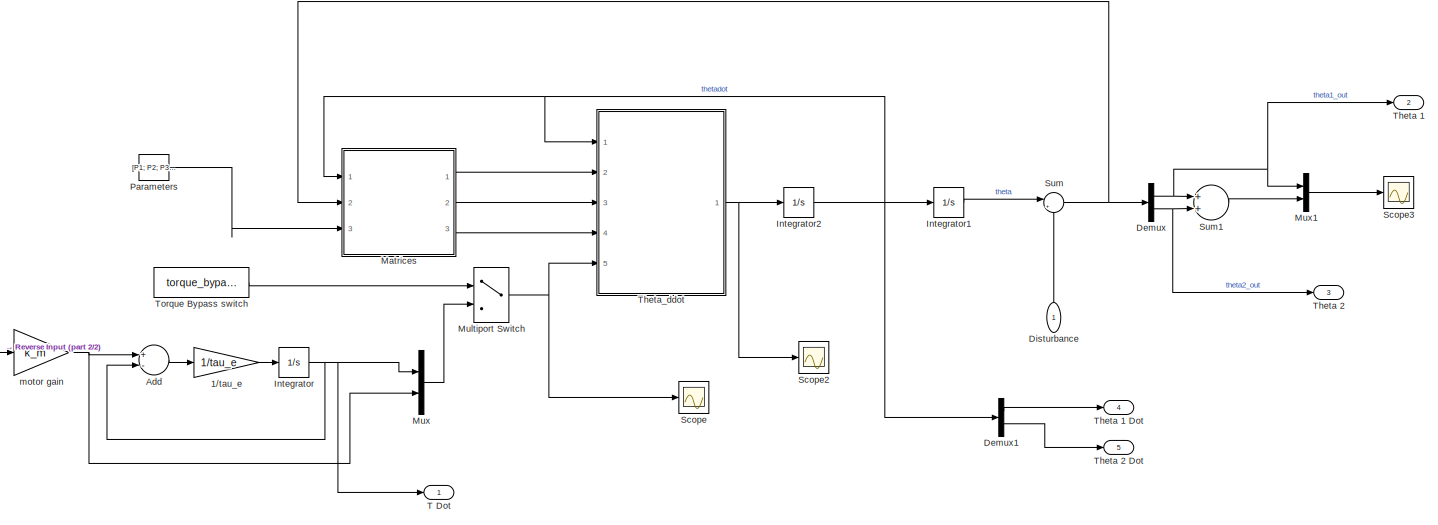
[diagram: root canvas - part 1/2, most of the canvas]
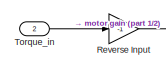
[diagram: root canvas - part 2/2, bottom left region]
MODEL slx_1d02cdfbc8e1
KIND model
CONFIG AbsTol = auto
CONFIG EnableMultiTasking = on
CONFIG FixedStep = Ts
CONFIG MaxStep = auto
CONFIG MinStep = auto
CONFIG RelTol = 1e-4
CONFIG SampleTimeConstraint = Unconstrained
CONFIG Solver = VariableStepAuto
CONFIG SolverName = VariableStepAuto
CONFIG StartTime = 0.0
CONFIG StopTime = 10
WORKSPACE source: MAT-file member
WORKSPACE I1 = 0.0029
BLOCK [Gain] 1//tau_e 
  Gain = 1/tau_e
  OutDataTypeStr = Inherit: Inherit via internal rule
  ParamDataTypeStr = Inherit: Inherit via internal rule
  SaturateOnIntegerOverflow = off
BLOCK [Sum] Add
  InputSameDT = off
  Inputs = +-
  OutDataTypeStr = Inherit: Inherit via internal rule
  Ports = [2, 1]
  SaturateOnIntegerOverflow = off
BLOCK [Demux] Demux
  DisplayOption = bar
  Outputs = 2
  Ports = [1, 2]
BLOCK [Demux] Demux1
  DisplayOption = bar
  Outputs = 2
  Ports = [1, 2]
BLOCK [Inport] Disturbance
  IconDisplay = Port number
  PortDimensions = 2
BLOCK [Integrator] Integrator
  Ports = [1, 1]
BLOCK [Integrator] Integrator1
  InitialCondition = initial_state
  Ports = [1, 1]
BLOCK [Integrator] Integrator2
  Ports = [1, 1]
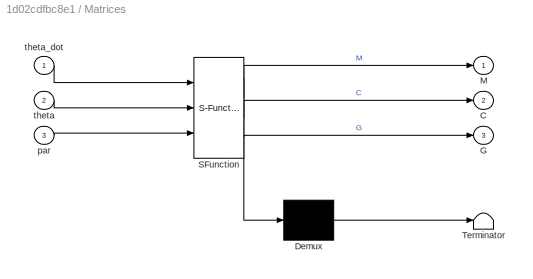
BLOCK [SubSystem] Matrices
  ErrorFcn = Stateflow.Translate.translate
  PermitHierarchicalResolution = ExplicitOnly
  Ports = [3, 3]
  RequestExecContextInheritance = off
  SFBlockType = MATLAB Function
  TreatAsAtomicUnit = on
  Variant = off
BLOCK [Demux] Matrices/ Demux 
  Outputs = 1
  Ports = [1, 1]
BLOCK [S-Function] Matrices/ SFunction 
  EnableBusSupport = on
  FunctionName = sf_sfun
  PortCounts = [3 4]
  Ports = [3, 4]
  SFcnIsStateOwnerBlock = off
  SFunctionDeploymentMode = off
  Tag = Stateflow S-Function model_v2 2
BLOCK [Terminator] Matrices/ Terminator 
BLOCK [Outport] Matrices/C
  IconDisplay = Port number
  Port = 2
BLOCK [Outport] Matrices/G
  IconDisplay = Port number
  Port = 3
BLOCK [Outport] Matrices/M
  IconDisplay = Port number
BLOCK [Inport] Matrices/par
  IconDisplay = Port number
  Port = 3
BLOCK [Inport] Matrices/theta
  IconDisplay = Port number
  Port = 2
BLOCK [Inport] Matrices/theta_dot
  IconDisplay = Port number
BLOCK [MultiPortSwitch] Multiport Switch
  DataPortOrder = Zero-based contiguous
  InputSameDT = off
  Inputs = 1
  Ports = [2, 1]
  SaturateOnIntegerOverflow = off
BLOCK [Mux] Mux
  DisplayOption = bar
  Inputs = 2
  Ports = [2, 1]
BLOCK [Mux] Mux1
  DisplayOption = bar
  Inputs = 2
  Ports = [2, 1]
BLOCK [Constant] Parameters
  Value = [P1; P2; P3; g1;\ng2;\nb1;\nb2;]
BLOCK [Gain] Reverse Input
  Gain = -1
  OutDataTypeStr = Inherit: Inherit via internal rule
  ParamDataTypeStr = Inherit: Inherit via internal rule
  SaturateOnIntegerOverflow = off
BLOCK [Scope] Scope
  NumInputPorts = 1
  Ports = [1]
  ScopeSpecificationString = Simulink.scopes.TimeScopeBlockCfg('CurrentConfiguration', extmgr.ConfigurationSet(extmgr.Configuration('Core','General UI',true),extmgr.Configuration('Core','Source UI',true),extmgr.Configuration('Sources','WiredSimulink',true,'DataLoggingVariableName','ScopeData1'),extmgr.Configuration('Visuals','Time Domain',true,'SerializedDisplays',{struct('MinYLimReal','-43.60825','MaxYLimReal','41.9013','YLa...<+1379ch>
BLOCK [Scope] Scope2
  NumInputPorts = 1
  Ports = [1]
  ScopeSpecificationString = Simulink.scopes.TimeScopeBlockCfg('CurrentConfiguration', extmgr.ConfigurationSet(extmgr.Configuration('Core','General UI',true),extmgr.Configuration('Core','Source UI',true),extmgr.Configuration('Sources','WiredSimulink',true,'DataLoggingVariableName','ScopeData2','DataLoggingLimitDataPoints',true,'DataLoggingSaveFormat','Array','DataLoggingDecimation','1','DataLoggingDecimateData',true),extmgr.C...<+165ch>
BLOCK [Scope] Scope3
  NumInputPorts = 1
  Ports = [1]
  ScopeSpecificationString = Simulink.scopes.TimeScopeBlockCfg('CurrentConfiguration', extmgr.ConfigurationSet(extmgr.Configuration('Core','General UI',true),extmgr.Configuration('Core','Source UI',true),extmgr.Configuration('Sources','WiredSimulink',true,'DataLoggingLimitDataPoints',true,'DataLoggingSaveFormat','Array','DataLoggingDecimation','1','DataLoggingDecimateData',true),extmgr.Configuration('Visuals','Time Domain',tr...<+1487ch>
BLOCK [Sum] Sum
  IconShape = round
  InputSameDT = off
  Inputs = |++
  OutDataTypeStr = Inherit: Inherit via internal rule
  Ports = [2, 1]
  SaturateOnIntegerOverflow = off
BLOCK [Sum] Sum1
  InputSameDT = off
  OutDataTypeStr = Inherit: Inherit via internal rule
  Ports = [2, 1]
  SaturateOnIntegerOverflow = off
BLOCK [Outport] T Dot
  IconDisplay = Port number
BLOCK [Outport] Theta 1
  IconDisplay = Port number
  Port = 2
BLOCK [Outport] Theta 1 Dot
  IconDisplay = Port number
  Port = 4
BLOCK [Outport] Theta 2
  IconDisplay = Port number
  Port = 3
BLOCK [Outport] Theta 2 Dot
  IconDisplay = Port number
  Port = 5
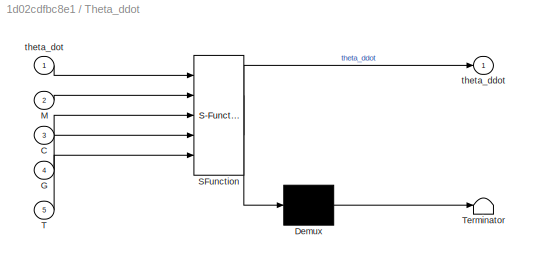
BLOCK [SubSystem] Theta_ddot 
  ErrorFcn = Stateflow.Translate.translate
  PermitHierarchicalResolution = ExplicitOnly
  Ports = [5, 1]
  RequestExecContextInheritance = off
  SFBlockType = MATLAB Function
  TreatAsAtomicUnit = on
  Variant = off
BLOCK [Demux] Theta_ddot / Demux 
  Outputs = 1
  Ports = [1, 1]
BLOCK [S-Function] Theta_ddot / SFunction 
  EnableBusSupport = on
  FunctionName = sf_sfun
  PortCounts = [5 2]
  Ports = [5, 2]
  SFcnIsStateOwnerBlock = off
  SFunctionDeploymentMode = off
  Tag = Stateflow S-Function model_v2 1
BLOCK [Terminator] Theta_ddot / Terminator 
BLOCK [Inport] Theta_ddot /C
  IconDisplay = Port number
  Port = 3
BLOCK [Inport] Theta_ddot /G
  IconDisplay = Port number
  Port = 4
BLOCK [Inport] Theta_ddot /M
  IconDisplay = Port number
  Port = 2
BLOCK [Inport] Theta_ddot /T
  IconDisplay = Port number
  Port = 5
BLOCK [Outport] Theta_ddot /theta_ddot
  IconDisplay = Port number
BLOCK [Inport] Theta_ddot /theta_dot
  IconDisplay = Port number
BLOCK [Constant] Torque Bypass switch
  Value = torque_bypass
BLOCK [Inport] Torque_in
  IconDisplay = Port number
  Port = 2
BLOCK [Gain] motor gain 
  Gain = k_m
  OutDataTypeStr = Inherit: Inherit via internal rule
  ParamDataTypeStr = Inherit: Inherit via internal rule
  SaturateOnIntegerOverflow = off
LINE 1//tau_e :1 -> Integrator:1
LINE Add:1 -> 1//tau_e :1
LINE Demux1:1 -> Theta 1 Dot:1
LINE Demux1:2 -> Theta 2 Dot:1
NET Demux:1 -> Mux1:1, Sum1:1, Theta 1:1
NET Demux:2 -> Sum1:2, Theta 2:1
LINE Disturbance:1 -> Sum:2
LINE Integrator1:1 -> Sum:1
NET Integrator2:1 -> Demux1:1, Integrator1:1, Matrices:1, Theta_ddot :1
NET Integrator:1 -> Add:2, Mux:1, T Dot:1
LINE Matrices:1 -> Theta_ddot :2
LINE Matrices:2 -> Theta_ddot :3
LINE Matrices:3 -> Theta_ddot :4
NET Multiport Switch:1 -> Scope:1, Theta_ddot :5
LINE Mux1:1 -> Scope3:1
LINE Mux:1 -> Multiport Switch:2
LINE Parameters:1 -> Matrices:3
LINE Reverse Input:1 -> motor gain :1
LINE Sum1:1 -> Mux1:2
NET Sum:1 -> Demux:1, Matrices:2
NET Theta_ddot :1 -> Integrator2:1, Scope2:1
LINE Torque Bypass switch:1 -> Multiport Switch:1
LINE Torque_in:1 -> Reverse Input:1
NET motor gain :1 -> Add:1, Mux:2
note: NET lines group one-source signal fan-out (src -> all destinations, sorted); 1:1 wires keep LINE
CHART Theta_ddot
 states=1 transitions=1
  STATE_LABEL 'eML_blk_kernel()'
  STATE_LABEL 'SCRIPT:\nfunction theta_ddot = fcn(theta_dot,M,C,G,T)\ntheta_ddot = [0;0];\n\ntheta_ddot = M\\[T;0] - M\\C*theta_dot - M\\G;\n'
CHART Matrices states=1 transitions=1
  STATE_LABEL 'eML_blk_kernel()'
  STATE_LABEL 'SCRIPT:\nfunction [M, C, G] = fcn(theta_dot, theta, par)\n\nM = zeros(2);\nC = zeros(2);\nG = [0;0];\n\n\nP1 = par(1);\nP2 = par(2);\nP3 = par(3);\ng1 = par(4);\ng2 = par(5);\nb1 = par(6);\nb2 = par(7);\n\nM = [(P1 + P2 + 2*P3*cos(theta(2)))               (P2 + P3*cos(theta(2))) ;\n     (P2 + P3*cos(theta(2)))                       P2                   ];\n \n \nC = [(b1 - P3*theta_dot(2)*sin(theta(2)))           (-P...<+846ch>'
